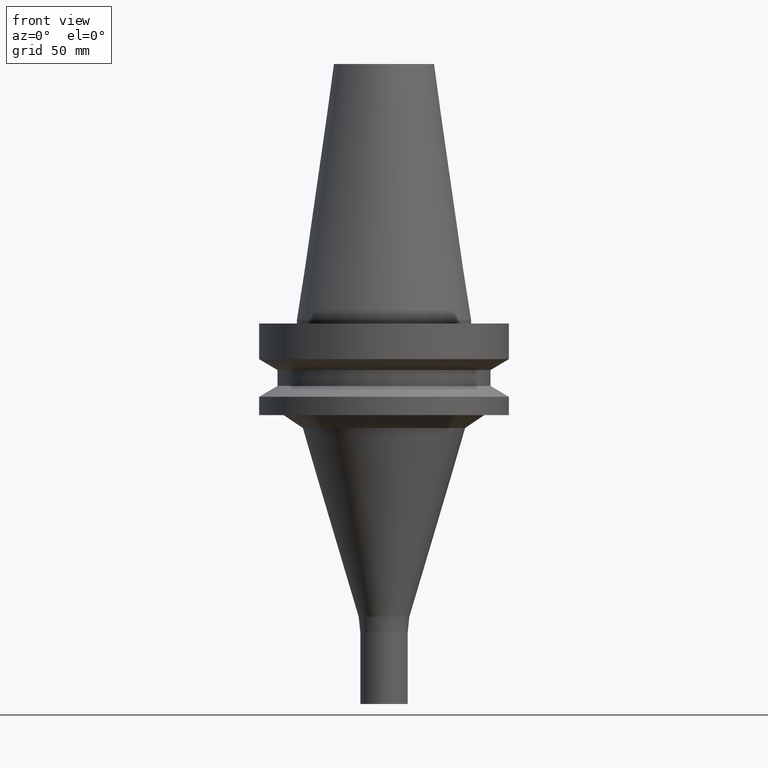
[diagram: clean part render]
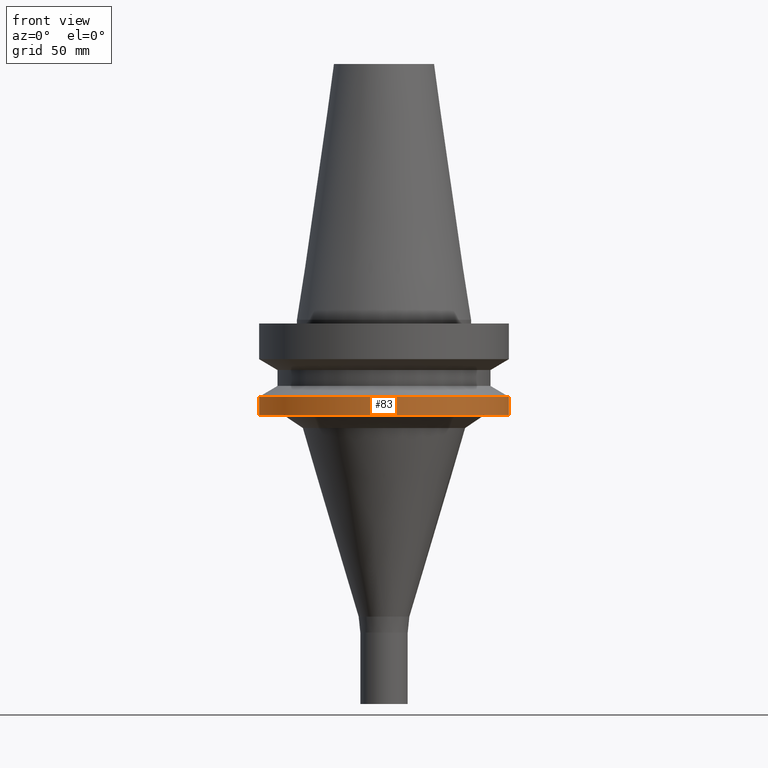
[diagram: same view with one face highlighted and labeled with its STEP entity id]
A machine part, front view. The second image highlights one B-rep face of the part: STEP entity #83.
In plain terms, the highlighted cylindrical surface (bore or boss wall) has radius 50 mm, axis along (-0, -0, 1).
Its self-contained STEP definition (entity closure, byte-faithful):
#83=ADVANCED_FACE('',(#114,#115),#116,.T.);
#114=FACE_BOUND('',#157,.T.);
#115=FACE_BOUND('',#158,.T.);
#116=CYLINDRICAL_SURFACE('',#159,50.0);
#157=EDGE_LOOP('',(#216));
#158=EDGE_LOOP('',(#217));
#159=AXIS2_PLACEMENT_3D('',#218,#219,#220);
#216=ORIENTED_EDGE('',*,*,#258,.F.);
#217=ORIENTED_EDGE('',*,*,#257,.T.);
#218=CARTESIAN_POINT('',(2.10333087753558E-015,4.20666175507116E-015,-34.35));
#219=DIRECTION('',(-6.12323399573677E-017,-1.22464679914735E-016,1.0));
#220=DIRECTION('',(-1.23259516440783E-032,1.0,1.22464679914735E-016));
#257=EDGE_CURVE('',#278,#278,#279,.T.);
#258=EDGE_CURVE('',#280,#280,#281,.T.);
#278=VERTEX_POINT('',#306);
#279=CIRCLE('',#307,50.0);
#280=VERTEX_POINT('',#308);
#281=CIRCLE('',#309,50.0);
#306=CARTESIAN_POINT('',(1.87983283669119E-015,50.0,-30.7));
#307=AXIS2_PLACEMENT_3D('',#341,#342,#343);
#308=CARTESIAN_POINT('',(2.32682891837997E-015,50.0,-38.0));
#309=AXIS2_PLACEMENT_3D('',#344,#345,#346);
#341=CARTESIAN_POINT('',(1.87983283669119E-015,3.75966567338237E-015,-30.7));
#342=DIRECTION('',(6.12323399573677E-017,1.22464679914735E-016,-1.0));
#343=DIRECTION('',(-1.23259516440783E-032,1.0,1.22464679914735E-016));
#344=CARTESIAN_POINT('',(2.32682891837997E-015,4.65365783675994E-015,-38.0));
#345=DIRECTION('',(6.12323399573677E-017,1.22464679914735E-016,-1.0));
#346=DIRECTION('',(-1.23259516440783E-032,1.0,1.22464679914735E-016));